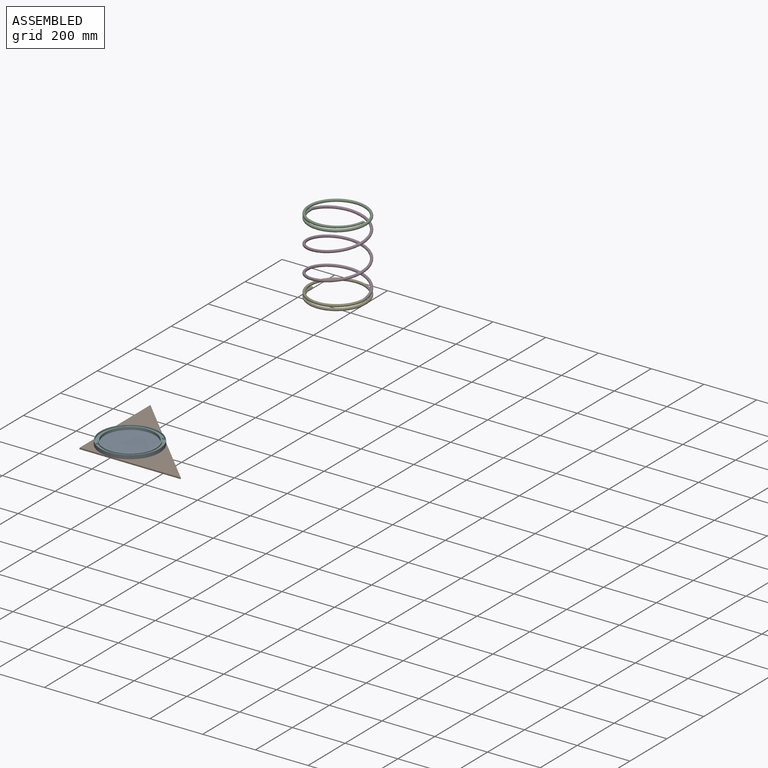
[diagram: assembled view]
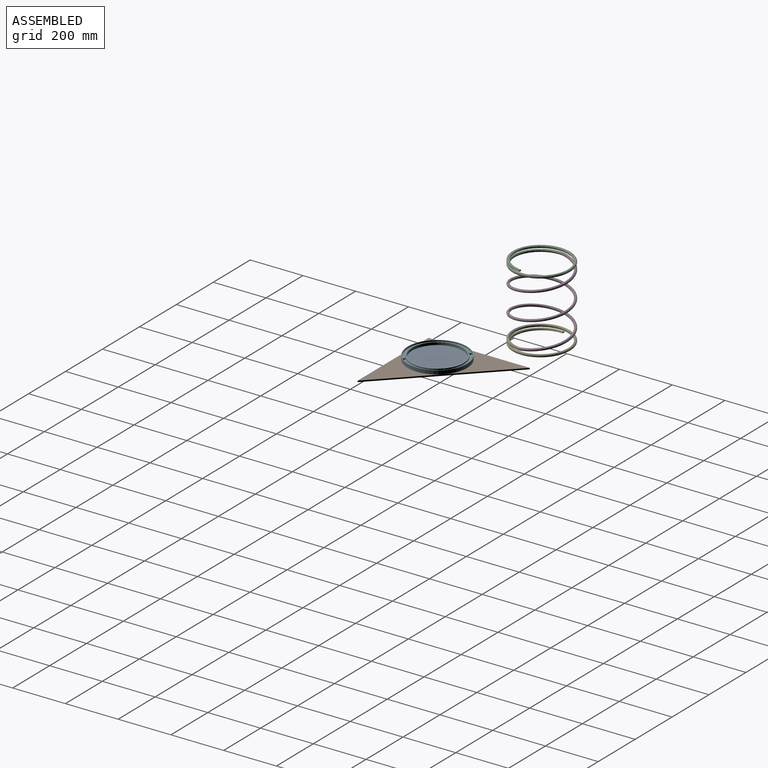
[diagram: assembled view, second angle]
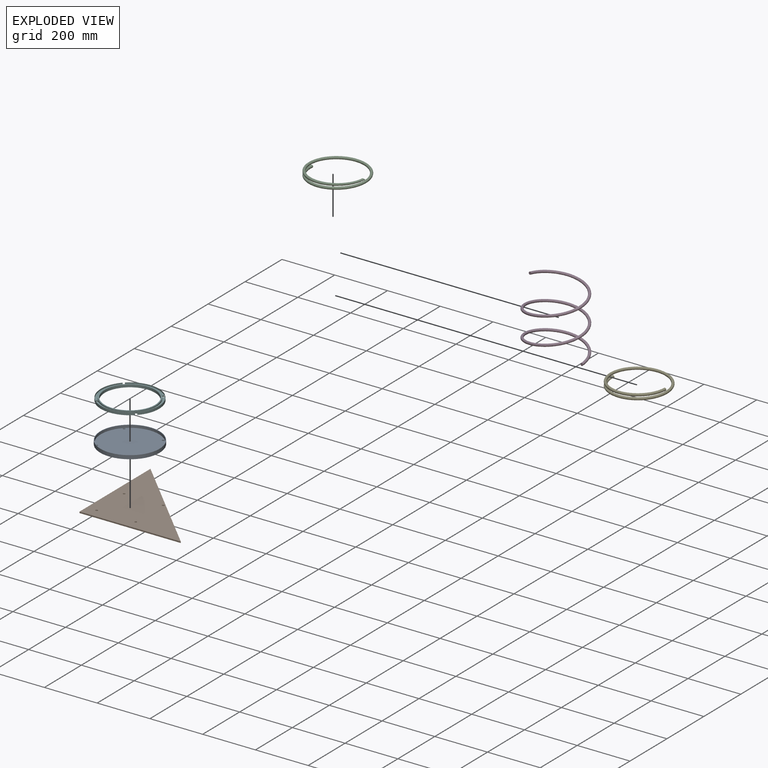
[diagram: exploded view]
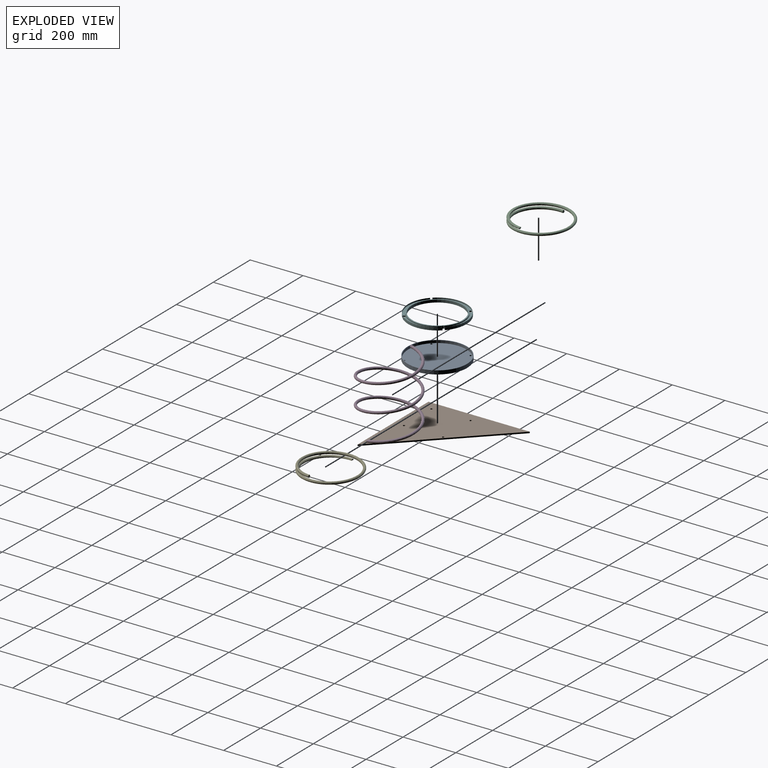
[diagram: exploded view, second angle]
ASSEMBLY  parts=6 mates=4
PART A: 9 faces, bbox 225x225x14 mm
  f0: plane 221x221mm, normal (0,0,1), area 38143.2mm2, adj f3,f4,f5,f6,f7
  f1: cylinder r=112.5mm len=225mm, axis (0,0,-1), area 9896mm2, adj f2,f8
  f2: plane 225x225mm, normal (0,0,-1), area 39544.4mm2, adj f1,f3,f4,f5,f6
  f3: cylinder r=4.15mm len=8.3mm, axis (0,0,1), area 104.3mm2, adj f0,f2
  f4: cylinder r=4.15mm len=8.3mm, axis (0,0,1), area 104.3mm2, adj f0,f2
  f5: cylinder r=4.15mm len=8.3mm, axis (0,0,1), area 104.3mm2, adj f0,f2
  f6: cylinder r=4.15mm len=8.3mm, axis (0,0,1), area 104.3mm2, adj f0,f2
  f7: cylinder r=110.5mm len=221mm, axis (0,0,-1), area 6942.9mm2, adj f0,f8
  f8: plane 225x225mm, normal (0,0,1), area 1401.2mm2, adj f1,f7
PART B: 9 faces, bbox 384.1x384.1x5 mm
  f0: plane 384.1x5mm, normal (0,-1,0), area 1920.5mm2, adj f1,f2,f3,f4
  f1: plane 384.1x384.1mm, normal (0.71,0.71,0), area 2716mm2, adj f0,f2,f3,f4
  f2: plane 384.1x5mm, normal (-1,0,0), area 1920.5mm2, adj f0,f1,f3,f4
  f3: plane 384.1x384.1mm, normal (0,0,1), area 73550mm2, adj f0,f1,f2,f5,f6,f7,f8
  f4: plane 384.1x384.1mm, normal (0,0,-1), area 73550mm2, adj f0,f1,f2,f5,f6,f7,f8
  f5: cylinder r=4.15mm len=8.3mm, axis (0,0,1), area 130.4mm2, adj f3,f4
  f6: cylinder r=4.15mm len=8.3mm, axis (0,0,1), area 130.4mm2, adj f3,f4
  f7: cylinder r=4.15mm len=8.3mm, axis (0,0,1), area 130.4mm2, adj f3,f4
  f8: cylinder r=4.15mm len=8.3mm, axis (0,0,1), area 130.4mm2, adj f3,f4
PART C: 4 faces, bbox 221.4x221.4x41.4 mm
  f0: bspline ~220x220mm, area 28557.7mm2, adj f1,f2,f3
  f1: plane 11.42x6.42mm, normal (0,1,0), area 39.3mm2, adj f0,f3
  f2: plane 11.39x11.39mm, normal (0,1,0), area 78.5mm2, adj f0
  f3: plane 184.28x108.75mm, normal (0,0,1), area 1941.4mm2, adj f0,f1
PART D: 3 faces, bbox 220x220x276.3 mm
  f0: plane 10x10mm, normal (0,-1,0), area 78.5mm2, adj f2
  f1: plane 10x10mm, normal (0,-1,0), area 78.5mm2, adj f2
  f2: bspline ~276.25x220mm, area 51989.1mm2, adj f0,f1
PART E: same geometry as C
PART F: 27 faces, bbox 221x221x10 mm
  f0: cylinder r=110.5mm len=151.17mm, axis (0,0,-1), area 1664.7mm2, adj f3,f19,f23,f26
  f1: cylinder r=110.5mm len=151.16mm, axis (0,0,-1), area 1664.7mm2, adj f4,f19,f25,f26
  f2: cylinder r=110.5mm len=151.17mm, axis (0,0,-1), area 1664.7mm2, adj f5,f19,f24,f25
  f3: plane 151.17x29.89mm, normal (0,0,1), area 82.7mm2, adj f0,f21,f23,f26
  f4: plane 151.16x29.89mm, normal (0,0,1), area 82.7mm2, adj f1,f9,f25,f26
  f5: plane 151.17x29.89mm, normal (0,0,1), area 82.7mm2, adj f2,f10,f24,f25
  f6: cylinder r=100mm len=135.57mm, axis (0,0,1), area 744.9mm2, adj f13,f15,f25,f26
  f7: cylinder r=100mm len=135.57mm, axis (0,0,1), area 744.9mm2, adj f15,f22,f24,f25
  f8: cylinder r=100mm len=135.57mm, axis (0,0,1), area 744.9mm2, adj f14,f15,f23,f24
  f9: cylinder r=110mm len=149.44mm, axis (0,0,1), area 821.4mm2, adj f4,f13,f25,f26
  f10: cylinder r=110mm len=149.44mm, axis (0,0,1), area 821.4mm2, adj f5,f22,f24,f25
  f11: cylinder r=110mm len=149.44mm, axis (0,0,1), area 821.4mm2, adj f14,f18,f23,f24
  f12: plane 149.44x36.48mm, normal (0,0,1), area 1533.6mm2, adj f20,f21,f23,f26
  f13: plane 149.44x36.48mm, normal (0,0,1), area 1533.6mm2, adj f6,f9,f25,f26
  f14: plane 149.44x36.48mm, normal (0,0,1), area 1533.6mm2, adj f8,f11,f23,f24
  f15: plane 200x200mm, normal (0,0,1), area 2730.7mm2, adj f6,f7,f8,f16,f20,f23,f24,f25
  f16: cylinder r=95.5mm len=191mm, axis (0,0,-1), area 6000.4mm2, adj f15,f19
  f17: cylinder r=110.5mm len=151.17mm, axis (0,0,-1), area 1664.7mm2, adj f18,f19,f23,f24
  f18: plane 151.17x29.89mm, normal (0,0,1), area 82.7mm2, adj f11,f17,f23,f24
  f19: plane 221x221mm, normal (0,0,-1), area 9195.9mm2, adj f0,f1,f2,f16,f17,f23,f24,f25
  f20: cylinder r=100mm len=135.57mm, axis (0,0,1), area 744.9mm2, adj f12,f15,f23,f26
  f21: cylinder r=110mm len=149.44mm, axis (0,0,1), area 821.4mm2, adj f3,f12,f23,f26
  f22: plane 149.44x36.48mm, normal (0,0,1), area 1533.6mm2, adj f7,f10,f24,f25
  f23: cylinder r=6.5mm len=13mm, axis (0,0,1), area 219.1mm2, adj f0,f3,f8,f11,f12,f14,f15,f17
  f24: cylinder r=6.5mm len=13mm, axis (0,0,1), area 219.1mm2, adj f2,f5,f7,f8,f10,f11,f14,f15
  f25: cylinder r=6.5mm len=13mm, axis (0,0,1), area 219.1mm2, adj f1,f2,f4,f5,f6,f7,f9,f10
  f26: cylinder r=6.5mm len=13mm, axis (0,0,1), area 219.1mm2, adj f0,f1,f3,f4,f6,f9,f12,f13
PLACE A t=(89.25,-7.38,-263.98)mm
PLACE B t=(-23.25,-119.88,-268.98)mm
PLACE C rot(axis=(0,0,-1),5deg) t=(432.12,628.58,379.8)mm
PLACE D rot(axis=(0,0,-1),5deg) t=(432.12,628.58,109.8)mm
PLACE E rot(axis=(-0.04,-1,0),180deg) t=(432.12,628.58,89.8)mm
PLACE F t=(89.25,-7.38,-259.98)mm
MATE fastened F.f24 <-> A.f6  axis (0,0,-1) through (163.5,66.86,-259.98)mm
MATE fastened D.f1 <-> C.f2  axis (-0.09,-1,0) through (327.52,637.74,359.8)mm
MATE fastened A.f3 <-> B.f5  axis (0,0,-1) through (15.01,66.86,-263.98)mm
MATE fastened E.f2 <-> D.f0  axis (0.09,1,0) through (536.72,619.43,109.8)mm
